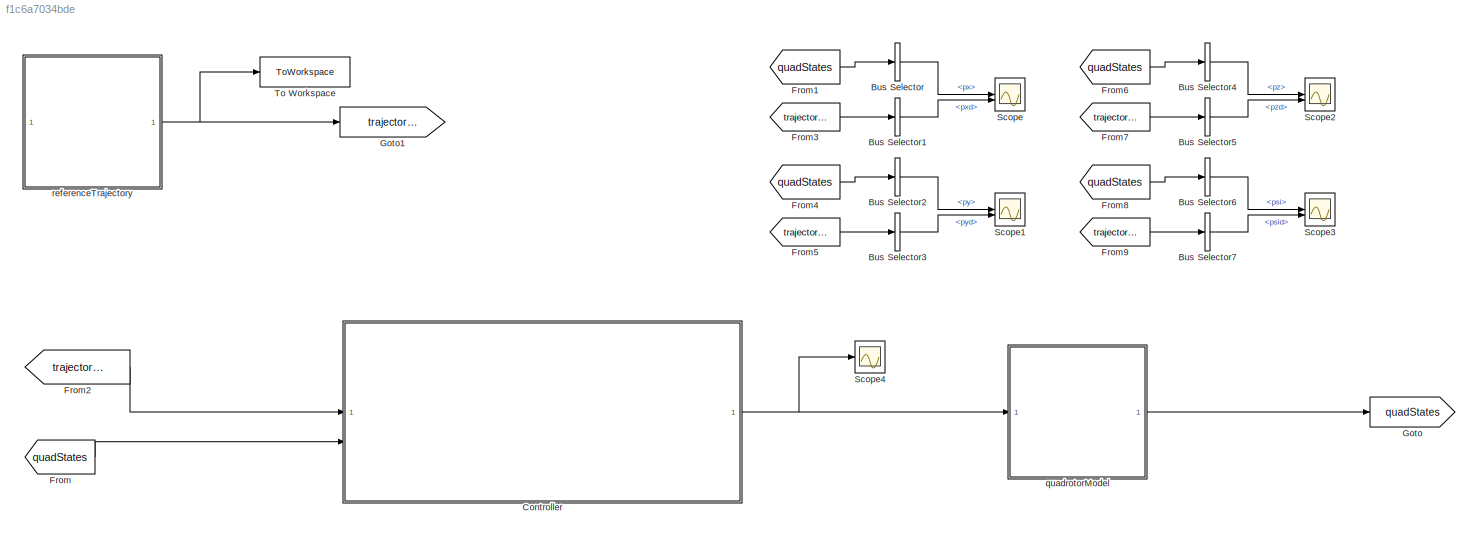
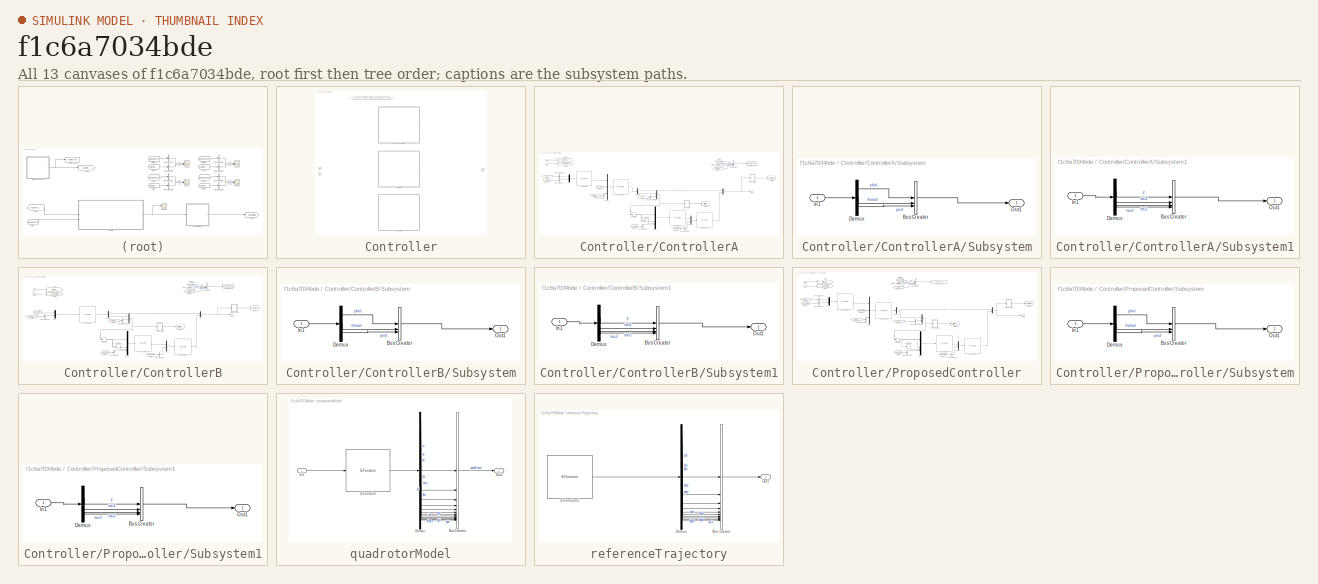
[diagram: thumbnail index - all 13 canvases of the model, root first then tree order]
MODEL slx_f1c6a7034bde
KIND model
CONFIG AbsTol = auto
CONFIG EnableMultiTasking = off
CONFIG FixedStep = 0.005
CONFIG MaxStep = auto
CONFIG MinStep = auto
CONFIG PreLoadFcn = run('globalParams.m');\nglobal Mode;\nProposedController = Simulink.Variant('Mode == 1');\nControllerA = Simulink.Variant('Mode == 2');\nControllerB = Simulink.Variant('Mode == 3');
CONFIG RelTol = 1e-3
CONFIG SampleTimeConstraint = Unconstrained
CONFIG SolverName = FixedStepAuto
CONFIG StartTime = 0.0
CONFIG StopTime = 50.0
BLOCK [BusSelector] Bus Selector
  OutputSignals = px
BLOCK [BusSelector] Bus Selector1
  OutputSignals = pxd
BLOCK [BusSelector] Bus Selector2
  OutputSignals = py
BLOCK [BusSelector] Bus Selector3
  OutputSignals = pyd
BLOCK [BusSelector] Bus Selector4
  OutputSignals = pz
BLOCK [BusSelector] Bus Selector5
  OutputSignals = pzd
BLOCK [BusSelector] Bus Selector6
  OutputSignals = psi
BLOCK [BusSelector] Bus Selector7
  OutputSignals = psid
BLOCK [SubSystem] Controller
  ClipboardFcn = ProposedController = Simulink.Variant('Mode == 1');\nControllerA = Simulink.Variant('Mode == 2');\nControllerB = Simulink.Variant('Mode == 3');\nMode = 1;
  Variant = on
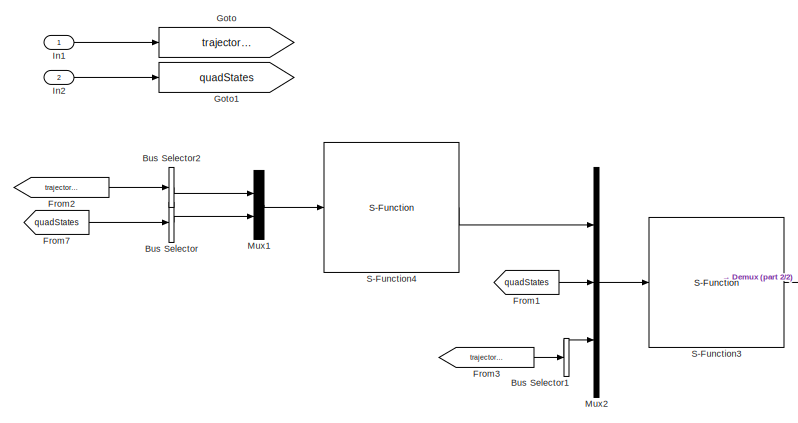
[diagram: Controller/ControllerA - part 1/2, top left region]
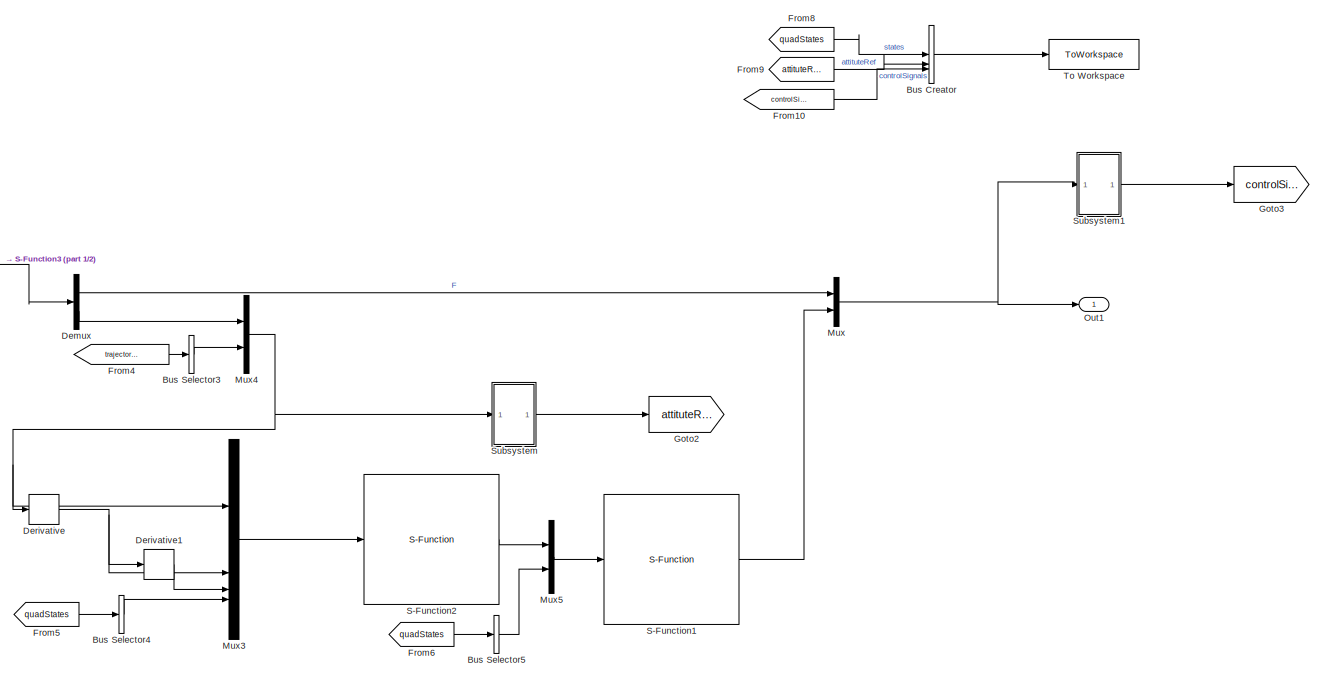
[diagram: Controller/ControllerA - part 2/2, right side, full height]
BLOCK [SubSystem] Controller/ControllerA
  VariantControl = ControllerA
BLOCK [BusCreator] Controller/ControllerA/Bus Creator
  DisplayOption = bar
  InheritFromInputs = on
  Inputs = 3
BLOCK [BusSelector] Controller/ControllerA/Bus Selector
  OutputAsBus = on
  OutputSignals = px,py,pz,dpx,dpy,dpz
BLOCK [BusSelector] Controller/ControllerA/Bus Selector1
  OutputAsBus = on
  OutputSignals = ddpxd,ddpyd,ddpzd,psid
BLOCK [BusSelector] Controller/ControllerA/Bus Selector2
  OutputAsBus = on
  OutputSignals = pxd,pyd,pzd,dpxd,dpyd,dpzd,ddpxd,ddpyd,ddpzd
BLOCK [BusSelector] Controller/ControllerA/Bus Selector3
  OutputAsBus = on
  OutputSignals = psid
BLOCK [BusSelector] Controller/ControllerA/Bus Selector4
  OutputAsBus = on
  OutputSignals = phi,theta,psi,dphi,dtheta,dpsi
BLOCK [BusSelector] Controller/ControllerA/Bus Selector5
  OutputAsBus = on
  OutputSignals = phi,theta,psi,dphi,dtheta,dpsi
BLOCK [Demux] Controller/ControllerA/Demux
  Outputs = [1,2]
BLOCK [Derivative] Controller/ControllerA/Derivative
BLOCK [Derivative] Controller/ControllerA/Derivative1
BLOCK [From] Controller/ControllerA/From1
  GotoTag = quadStates
BLOCK [From] Controller/ControllerA/From10
  GotoTag = controlSignals
BLOCK [From] Controller/ControllerA/From2
  GotoTag = trajectoryRef
BLOCK [From] Controller/ControllerA/From3
  GotoTag = trajectoryRef
BLOCK [From] Controller/ControllerA/From4
  GotoTag = trajectoryRef
BLOCK [From] Controller/ControllerA/From5
  GotoTag = quadStates
BLOCK [From] Controller/ControllerA/From6
  GotoTag = quadStates
BLOCK [From] Controller/ControllerA/From7
  GotoTag = quadStates
BLOCK [From] Controller/ControllerA/From8
  GotoTag = quadStates
BLOCK [From] Controller/ControllerA/From9
  GotoTag = attituteRef
BLOCK [Goto] Controller/ControllerA/Goto
  GotoTag = trajectoryRef
BLOCK [Goto] Controller/ControllerA/Goto1
  GotoTag = quadStates
BLOCK [Goto] Controller/ControllerA/Goto2
  GotoTag = attituteRef
BLOCK [Goto] Controller/ControllerA/Goto3
  GotoTag = controlSignals
BLOCK [Inport] Controller/ControllerA/In1
BLOCK [Inport] Controller/ControllerA/In2
  Port = 2
BLOCK [Mux] Controller/ControllerA/Mux
  DisplayOption = bar
  Inputs = 2
BLOCK [Mux] Controller/ControllerA/Mux1
  DisplayOption = bar
  Inputs = 2
BLOCK [Mux] Controller/ControllerA/Mux2
  DisplayOption = bar
  Inputs = 3
BLOCK [Mux] Controller/ControllerA/Mux3
  DisplayOption = bar
BLOCK [Mux] Controller/ControllerA/Mux4
  DisplayOption = bar
  Inputs = 2
BLOCK [Mux] Controller/ControllerA/Mux5
  DisplayOption = bar
  Inputs = 2
BLOCK [Outport] Controller/ControllerA/Out1
BLOCK [S-Function] Controller/ControllerA/S-Function1
  EnableBusSupport = off
  FunctionName = attitudeInnerControllerA
  SFcnIsStateOwnerBlock = off
  SFunctionDeploymentMode = off
BLOCK [S-Function] Controller/ControllerA/S-Function2
  EnableBusSupport = off
  FunctionName = attitudeOuterControllerA
  SFcnIsStateOwnerBlock = off
  SFunctionDeploymentMode = off
BLOCK [S-Function] Controller/ControllerA/S-Function3
  EnableBusSupport = off
  FunctionName = positionInnerControllerA
  SFcnIsStateOwnerBlock = off
  SFunctionDeploymentMode = off
BLOCK [S-Function] Controller/ControllerA/S-Function4
  EnableBusSupport = off
  FunctionName = positionOuterControllerA
  SFcnIsStateOwnerBlock = off
  SFunctionDeploymentMode = off
BLOCK [SubSystem] Controller/ControllerA/Subsystem
BLOCK [BusCreator] Controller/ControllerA/Subsystem/Bus Creator
  DisplayOption = bar
  InheritFromInputs = on
  Inputs = 3
BLOCK [Demux] Controller/ControllerA/Subsystem/Demux
  Outputs = 3
BLOCK [Inport] Controller/ControllerA/Subsystem/In1
BLOCK [Outport] Controller/ControllerA/Subsystem/Out1
BLOCK [SubSystem] Controller/ControllerA/Subsystem1
BLOCK [BusCreator] Controller/ControllerA/Subsystem1/Bus Creator
  DisplayOption = bar
  InheritFromInputs = on
  Inputs = 4
BLOCK [Demux] Controller/ControllerA/Subsystem1/Demux
BLOCK [Inport] Controller/ControllerA/Subsystem1/In1
BLOCK [Outport] Controller/ControllerA/Subsystem1/Out1
BLOCK [ToWorkspace] Controller/ControllerA/To Workspace
  FixptAsFi = on
  MaxDataPoints = inf
  SampleTime = -1
  SaveFormat = Timeseries
  VariableName = outStatesControllerA
BLOCK [SubSystem] Controller/ControllerB
  VariantControl = ControllerB
BLOCK [BusCreator] Controller/ControllerB/Bus Creator
  DisplayOption = bar
  InheritFromInputs = on
  Inputs = 3
BLOCK [BusSelector] Controller/ControllerB/Bus Selector2
  OutputAsBus = on
  OutputSignals = pxd,pyd,pzd,dpxd,dpyd,dpzd,ddpxd,ddpyd,ddpzd,psid
BLOCK [BusSelector] Controller/ControllerB/Bus Selector3
  OutputAsBus = on
  OutputSignals = psid
BLOCK [BusSelector] Controller/ControllerB/Bus Selector4
  OutputAsBus = on
  OutputSignals = phi,theta,psi,dphi,dtheta,dpsi
BLOCK [BusSelector] Controller/ControllerB/Bus Selector5
  OutputAsBus = on
  OutputSignals = phi,theta,psi,dphi,dtheta,dpsi
BLOCK [Demux] Controller/ControllerB/Demux
  Outputs = [1,2]
BLOCK [Derivative] Controller/ControllerB/Derivative
BLOCK [Derivative] Controller/ControllerB/Derivative1
BLOCK [From] Controller/ControllerB/From10
  GotoTag = controlSignals
BLOCK [From] Controller/ControllerB/From2
  GotoTag = trajectoryRef
BLOCK [From] Controller/ControllerB/From4
  GotoTag = trajectoryRef
BLOCK [From] Controller/ControllerB/From5
  GotoTag = quadStates
BLOCK [From] Controller/ControllerB/From6
  GotoTag = quadStates
BLOCK [From] Controller/ControllerB/From7
  GotoTag = quadStates
BLOCK [From] Controller/ControllerB/From8
  GotoTag = quadStates
BLOCK [From] Controller/ControllerB/From9
  GotoTag = attituteRef
BLOCK [Goto] Controller/ControllerB/Goto
  GotoTag = trajectoryRef
BLOCK [Goto] Controller/ControllerB/Goto1
  GotoTag = quadStates
BLOCK [Goto] Controller/ControllerB/Goto2
  GotoTag = attituteRef
BLOCK [Goto] Controller/ControllerB/Goto3
  GotoTag = controlSignals
BLOCK [Inport] Controller/ControllerB/In1
BLOCK [Inport] Controller/ControllerB/In2
  Port = 2
BLOCK [Mux] Controller/ControllerB/Mux
  DisplayOption = bar
  Inputs = 2
BLOCK [Mux] Controller/ControllerB/Mux1
  DisplayOption = bar
  Inputs = 2
BLOCK [Mux] Controller/ControllerB/Mux3
  DisplayOption = bar
BLOCK [Mux] Controller/ControllerB/Mux4
  DisplayOption = bar
  Inputs = 2
BLOCK [Mux] Controller/ControllerB/Mux5
  DisplayOption = bar
  Inputs = 2
BLOCK [Outport] Controller/ControllerB/Out1
BLOCK [S-Function] Controller/ControllerB/S-Function1
  EnableBusSupport = off
  FunctionName = attitudeInnerControllerB
  SFcnIsStateOwnerBlock = off
  SFunctionDeploymentMode = off
BLOCK [S-Function] Controller/ControllerB/S-Function2
  EnableBusSupport = off
  FunctionName = attitudeOuterControllerB
  SFcnIsStateOwnerBlock = off
  SFunctionDeploymentMode = off
BLOCK [S-Function] Controller/ControllerB/S-Function3
  EnableBusSupport = off
  FunctionName = positionInnerControllerB
  SFcnIsStateOwnerBlock = off
  SFunctionDeploymentMode = off
BLOCK [SubSystem] Controller/ControllerB/Subsystem
BLOCK [BusCreator] Controller/ControllerB/Subsystem/Bus Creator
  DisplayOption = bar
  InheritFromInputs = on
  Inputs = 3
BLOCK [Demux] Controller/ControllerB/Subsystem/Demux
  Outputs = 3
BLOCK [Inport] Controller/ControllerB/Subsystem/In1
BLOCK [Outport] Controller/ControllerB/Subsystem/Out1
BLOCK [SubSystem] Controller/ControllerB/Subsystem1
BLOCK [BusCreator] Controller/ControllerB/Subsystem1/Bus Creator
  DisplayOption = bar
  InheritFromInputs = on
  Inputs = 4
BLOCK [Demux] Controller/ControllerB/Subsystem1/Demux
BLOCK [Inport] Controller/ControllerB/Subsystem1/In1
BLOCK [Outport] Controller/ControllerB/Subsystem1/Out1
BLOCK [ToWorkspace] Controller/ControllerB/To Workspace
  FixptAsFi = on
  MaxDataPoints = inf
  SampleTime = -1
  SaveFormat = Timeseries
  VariableName = outStatesControllerB
BLOCK [Inport] Controller/In1
BLOCK [Inport] Controller/In2
  Port = 2
BLOCK [Outport] Controller/Out1
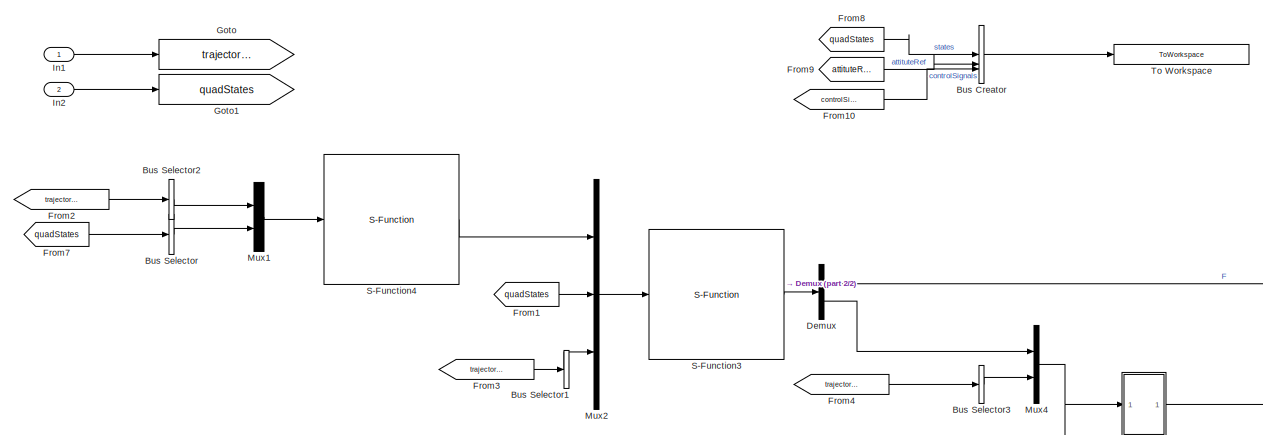
[diagram: Controller/ProposedController - part 1/2, top left region]
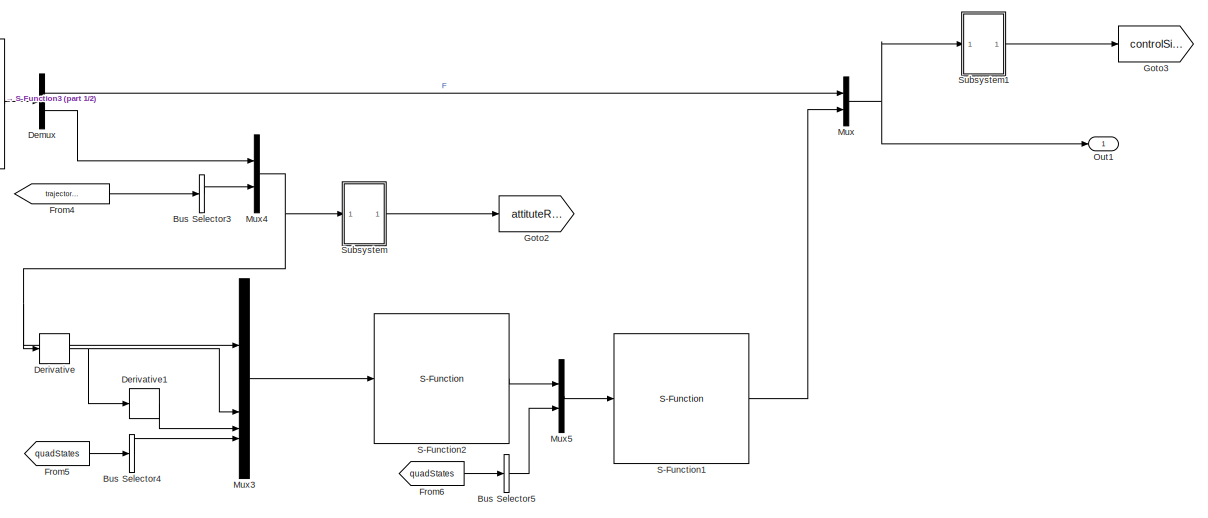
[diagram: Controller/ProposedController - part 2/2, middle right region]
BLOCK [SubSystem] Controller/ProposedController
  VariantControl = ProposedController
BLOCK [BusCreator] Controller/ProposedController/Bus Creator
  DisplayOption = bar
  InheritFromInputs = on
  Inputs = 3
BLOCK [BusSelector] Controller/ProposedController/Bus Selector
  OutputAsBus = on
  OutputSignals = px,py,pz,dpx,dpy,dpz
BLOCK [BusSelector] Controller/ProposedController/Bus Selector1
  OutputAsBus = on
  OutputSignals = ddpxd,ddpyd,ddpzd,psid
BLOCK [BusSelector] Controller/ProposedController/Bus Selector2
  OutputAsBus = on
  OutputSignals = pxd,pyd,pzd,dpxd,dpyd,dpzd,ddpxd,ddpyd,ddpzd
BLOCK [BusSelector] Controller/ProposedController/Bus Selector3
  OutputAsBus = on
  OutputSignals = psid
BLOCK [BusSelector] Controller/ProposedController/Bus Selector4
  OutputAsBus = on
  OutputSignals = phi,theta,psi,dphi,dtheta,dpsi
BLOCK [BusSelector] Controller/ProposedController/Bus Selector5
  OutputAsBus = on
  OutputSignals = phi,theta,psi,dphi,dtheta,dpsi
BLOCK [Demux] Controller/ProposedController/Demux
  Outputs = [1,2]
BLOCK [Derivative] Controller/ProposedController/Derivative
BLOCK [Derivative] Controller/ProposedController/Derivative1
BLOCK [From] Controller/ProposedController/From1
  GotoTag = quadStates
BLOCK [From] Controller/ProposedController/From10
  GotoTag = controlSignals
BLOCK [From] Controller/ProposedController/From2
  GotoTag = trajectoryRef
BLOCK [From] Controller/ProposedController/From3
  GotoTag = trajectoryRef
BLOCK [From] Controller/ProposedController/From4
  GotoTag = trajectoryRef
BLOCK [From] Controller/ProposedController/From5
  GotoTag = quadStates
BLOCK [From] Controller/ProposedController/From6
  GotoTag = quadStates
BLOCK [From] Controller/ProposedController/From7
  GotoTag = quadStates
BLOCK [From] Controller/ProposedController/From8
  GotoTag = quadStates
BLOCK [From] Controller/ProposedController/From9
  GotoTag = attituteRef
BLOCK [Goto] Controller/ProposedController/Goto
  GotoTag = trajectoryRef
BLOCK [Goto] Controller/ProposedController/Goto1
  GotoTag = quadStates
BLOCK [Goto] Controller/ProposedController/Goto2
  GotoTag = attituteRef
BLOCK [Goto] Controller/ProposedController/Goto3
  GotoTag = controlSignals
BLOCK [Inport] Controller/ProposedController/In1
BLOCK [Inport] Controller/ProposedController/In2
  Port = 2
BLOCK [Mux] Controller/ProposedController/Mux
  DisplayOption = bar
  Inputs = 2
BLOCK [Mux] Controller/ProposedController/Mux1
  DisplayOption = bar
  Inputs = 2
BLOCK [Mux] Controller/ProposedController/Mux2
  DisplayOption = bar
  Inputs = 3
BLOCK [Mux] Controller/ProposedController/Mux3
  DisplayOption = bar
BLOCK [Mux] Controller/ProposedController/Mux4
  DisplayOption = bar
  Inputs = 2
BLOCK [Mux] Controller/ProposedController/Mux5
  DisplayOption = bar
  Inputs = 2
BLOCK [Outport] Controller/ProposedController/Out1
BLOCK [S-Function] Controller/ProposedController/S-Function1
  EnableBusSupport = off
  FunctionName = attitudeInnerController
  SFcnIsStateOwnerBlock = off
  SFunctionDeploymentMode = off
BLOCK [S-Function] Controller/ProposedController/S-Function2
  EnableBusSupport = off
  FunctionName = attitudeOuterController
  SFcnIsStateOwnerBlock = off
  SFunctionDeploymentMode = off
BLOCK [S-Function] Controller/ProposedController/S-Function3
  EnableBusSupport = off
  FunctionName = positionInnerController
  SFcnIsStateOwnerBlock = off
  SFunctionDeploymentMode = off
BLOCK [S-Function] Controller/ProposedController/S-Function4
  EnableBusSupport = off
  FunctionName = positionOuterController
  SFcnIsStateOwnerBlock = off
  SFunctionDeploymentMode = off
BLOCK [SubSystem] Controller/ProposedController/Subsystem
BLOCK [BusCreator] Controller/ProposedController/Subsystem/Bus Creator
  DisplayOption = bar
  InheritFromInputs = on
  Inputs = 3
BLOCK [Demux] Controller/ProposedController/Subsystem/Demux
  Outputs = 3
BLOCK [Inport] Controller/ProposedController/Subsystem/In1
BLOCK [Outport] Controller/ProposedController/Subsystem/Out1
BLOCK [SubSystem] Controller/ProposedController/Subsystem1
BLOCK [BusCreator] Controller/ProposedController/Subsystem1/Bus Creator
  DisplayOption = bar
  InheritFromInputs = on
  Inputs = 4
BLOCK [Demux] Controller/ProposedController/Subsystem1/Demux
BLOCK [Inport] Controller/ProposedController/Subsystem1/In1
BLOCK [Outport] Controller/ProposedController/Subsystem1/Out1
BLOCK [ToWorkspace] Controller/ProposedController/To Workspace
  FixptAsFi = on
  MaxDataPoints = inf
  SampleTime = -1
  SaveFormat = Timeseries
  VariableName = outStatesProposedController
BLOCK [From] From
  GotoTag = quadStates
BLOCK [From] From1
  GotoTag = quadStates
BLOCK [From] From2
  GotoTag = trajectoryRef
BLOCK [From] From3
  GotoTag = trajectoryRef
BLOCK [From] From4
  GotoTag = quadStates
BLOCK [From] From5
  GotoTag = trajectoryRef
BLOCK [From] From6
  GotoTag = quadStates
BLOCK [From] From7
  GotoTag = trajectoryRef
BLOCK [From] From8
  GotoTag = quadStates
BLOCK [From] From9
  GotoTag = trajectoryRef
BLOCK [Goto] Goto
  GotoTag = quadStates
BLOCK [Goto] Goto1
  GotoTag = trajectoryRef
BLOCK [Scope] Scope
  Floating = off
  NumInputPorts = 2
  ScopeSpecificationString = Simulink.scopes.TimeScopeBlockCfg('CurrentConfiguration', extmgr.ConfigurationSet(extmgr.Configuration('Core','General UI',true,'FigureColor',[1 1 1]),extmgr.Configuration('Core','Source UI',true),extmgr.Configuration('Sources','WiredSimulink',true),extmgr.Configuration('Visuals','Time Domain',true,'SerializedDisplays',{struct('MinYLimReal','-0.67941','MaxYLimReal','0.67279','YLabelReal','','MinYL...<+1577ch>
BLOCK [Scope] Scope1
  Floating = off
  NumInputPorts = 2
  ScopeSpecificationString = Simulink.scopes.TimeScopeBlockCfg('CurrentConfiguration', extmgr.ConfigurationSet(extmgr.Configuration('Core','General UI',true,'FigureColor',[1 1 1]),extmgr.Configuration('Core','Source UI',true),extmgr.Configuration('Sources','WiredSimulink',true,'DataLoggingVariableName','ScopeData1'),extmgr.Configuration('Visuals','Time Domain',true,'SerializedDisplays',{struct('MinYLimReal','-1.28165','MaxYLi...<+1615ch>
BLOCK [Scope] Scope2
  Floating = off
  NumInputPorts = 2
  ScopeSpecificationString = Simulink.scopes.TimeScopeBlockCfg('CurrentConfiguration', extmgr.ConfigurationSet(extmgr.Configuration('Core','General UI',true,'FigureColor',[1 1 1]),extmgr.Configuration('Core','Source UI',true),extmgr.Configuration('Sources','WiredSimulink',true,'DataLoggingVariableName','ScopeData2'),extmgr.Configuration('Visuals','Time Domain',true,'SerializedDisplays',{struct('MinYLimReal','0.09779','MaxYLim...<+1601ch>
BLOCK [Scope] Scope3
  Floating = off
  NumInputPorts = 2
  ScopeSpecificationString = Simulink.scopes.TimeScopeBlockCfg('CurrentConfiguration', extmgr.ConfigurationSet(extmgr.Configuration('Core','General UI',true,'FigureColor',[1 1 1]),extmgr.Configuration('Core','Source UI',true),extmgr.Configuration('Sources','WiredSimulink',true,'DataLoggingVariableName','ScopeData3'),extmgr.Configuration('Visuals','Time Domain',true,'SerializedDisplays',{struct('MinYLimReal','-0.00966','MaxYLi...<+1609ch>
BLOCK [Scope] Scope4
  Floating = off
  NumInputPorts = 1
  ScopeSpecificationString = Simulink.scopes.TimeScopeBlockCfg('CurrentConfiguration', extmgr.ConfigurationSet(extmgr.Configuration('Core','General UI',true),extmgr.Configuration('Core','Source UI',true),extmgr.Configuration('Sources','WiredSimulink',true,'DataLoggingVariableName','ScopeData1'),extmgr.Configuration('Visuals','Time Domain',true,'SerializedDisplays',{struct('MinYLimReal','-3.18373','MaxYLimReal','21.99044','YLa...<+1439ch>
BLOCK [ToWorkspace] To Workspace
  FixptAsFi = on
  MaxDataPoints = inf
  SampleTime = -1
  SaveFormat = Timeseries
  VariableName = RefereneTraj
BLOCK [SubSystem] quadrotorModel
BLOCK [BusCreator] quadrotorModel/Bus Creator
  DisplayOption = bar
  InheritFromInputs = on
  Inputs = 12
BLOCK [Demux] quadrotorModel/Demux
  Outputs = 12
BLOCK [Inport] quadrotorModel/In1
BLOCK [Outport] quadrotorModel/Out1
BLOCK [S-Function] quadrotorModel/S-Function
  EnableBusSupport = off
  FunctionName = quadrotorModel
  SFcnIsStateOwnerBlock = off
  SFunctionDeploymentMode = off
BLOCK [SubSystem] referenceTrajectory
BLOCK [BusCreator] referenceTrajectory/Bus Creator
  DisplayOption = bar
  InheritFromInputs = on
  Inputs = 10
BLOCK [Demux] referenceTrajectory/Demux
  Outputs = 10
BLOCK [Outport] referenceTrajectory/Out1
BLOCK [S-Function] referenceTrajectory/S-Function5
  EnableBusSupport = off
  FunctionName = trajectoryReference
  SFcnIsStateOwnerBlock = off
  SFunctionDeploymentMode = off
ANNOTATION Controller: 1) Add Subsystem or Model blocks as valid variant choices. 2) You cannot connect blocks at this level. At simulation, connectivity is automatically determined, based on the active variant and port name matching.
LINE Bus Selector1:1 -> Scope:2
LINE Bus Selector2:1 -> Scope1:1
LINE Bus Selector3:1 -> Scope1:2
LINE Bus Selector4:1 -> Scope2:1
LINE Bus Selector5:1 -> Scope2:2
LINE Bus Selector6:1 -> Scope3:1
LINE Bus Selector7:1 -> Scope3:2
LINE Bus Selector:1 -> Scope:1
LINE Controller/ControllerA/Bus Creator:1 -> Controller/ControllerA/To Workspace:1
LINE Controller/ControllerA/Bus Selector1:1 -> Controller/ControllerA/Mux2:3
LINE Controller/ControllerA/Bus Selector2:1 -> Controller/ControllerA/Mux1:1
LINE Controller/ControllerA/Bus Selector3:1 -> Controller/ControllerA/Mux4:2
LINE Controller/ControllerA/Bus Selector4:1 -> Controller/ControllerA/Mux3:4
LINE Controller/ControllerA/Bus Selector5:1 -> Controller/ControllerA/Mux5:2
LINE Controller/ControllerA/Bus Selector:1 -> Controller/ControllerA/Mux1:2
LINE Controller/ControllerA/Demux:1 -> Controller/ControllerA/Mux:1
LINE Controller/ControllerA/Demux:2 -> Controller/ControllerA/Mux4:1
LINE Controller/ControllerA/Derivative1:1 -> Controller/ControllerA/Mux3:3
NET Controller/ControllerA/Derivative:1 -> Controller/ControllerA/Derivative1:1, Controller/ControllerA/Mux3:2
LINE Controller/ControllerA/From10:1 -> Controller/ControllerA/Bus Creator:3
LINE Controller/ControllerA/From1:1 -> Controller/ControllerA/Mux2:2
LINE Controller/ControllerA/From2:1 -> Controller/ControllerA/Bus Selector2:1
LINE Controller/ControllerA/From3:1 -> Controller/ControllerA/Bus Selector1:1
LINE Controller/ControllerA/From4:1 -> Controller/ControllerA/Bus Selector3:1
LINE Controller/ControllerA/From5:1 -> Controller/ControllerA/Bus Selector4:1
LINE Controller/ControllerA/From6:1 -> Controller/ControllerA/Bus Selector5:1
LINE Controller/ControllerA/From7:1 -> Controller/ControllerA/Bus Selector:1
LINE Controller/ControllerA/From8:1 -> Controller/ControllerA/Bus Creator:1
LINE Controller/ControllerA/From9:1 -> Controller/ControllerA/Bus Creator:2
LINE Controller/ControllerA/In1:1 -> Controller/ControllerA/Goto:1
LINE Controller/ControllerA/In2:1 -> Controller/ControllerA/Goto1:1
LINE Controller/ControllerA/Mux1:1 -> Controller/ControllerA/S-Function4:1
LINE Controller/ControllerA/Mux2:1 -> Controller/ControllerA/S-Function3:1
LINE Controller/ControllerA/Mux3:1 -> Controller/ControllerA/S-Function2:1
NET Controller/ControllerA/Mux4:1 -> Controller/ControllerA/Derivative:1, Controller/ControllerA/Mux3:1, Controller/ControllerA/Subsystem:1
LINE Controller/ControllerA/Mux5:1 -> Controller/ControllerA/S-Function1:1
NET Controller/ControllerA/Mux:1 -> Controller/ControllerA/Out1:1, Controller/ControllerA/Subsystem1:1
LINE Controller/ControllerA/S-Function1:1 -> Controller/ControllerA/Mux:2
LINE Controller/ControllerA/S-Function2:1 -> Controller/ControllerA/Mux5:1
LINE Controller/ControllerA/S-Function3:1 -> Controller/ControllerA/Demux:1
LINE Controller/ControllerA/S-Function4:1 -> Controller/ControllerA/Mux2:1
LINE Controller/ControllerA/Subsystem/Bus Creator:1 -> Controller/ControllerA/Subsystem/Out1:1
LINE Controller/ControllerA/Subsystem/Demux:1 -> Controller/ControllerA/Subsystem/Bus Creator:1
LINE Controller/ControllerA/Subsystem/Demux:2 -> Controller/ControllerA/Subsystem/Bus Creator:2
LINE Controller/ControllerA/Subsystem/Demux:3 -> Controller/ControllerA/Subsystem/Bus Creator:3
LINE Controller/ControllerA/Subsystem/In1:1 -> Controller/ControllerA/Subsystem/Demux:1
LINE Controller/ControllerA/Subsystem1/Bus Creator:1 -> Controller/ControllerA/Subsystem1/Out1:1
LINE Controller/ControllerA/Subsystem1/Demux:1 -> Controller/ControllerA/Subsystem1/Bus Creator:1
LINE Controller/ControllerA/Subsystem1/Demux:2 -> Controller/ControllerA/Subsystem1/Bus Creator:2
LINE Controller/ControllerA/Subsystem1/Demux:3 -> Controller/ControllerA/Subsystem1/Bus Creator:3
LINE Controller/ControllerA/Subsystem1/Demux:4 -> Controller/ControllerA/Subsystem1/Bus Creator:4
LINE Controller/ControllerA/Subsystem1/In1:1 -> Controller/ControllerA/Subsystem1/Demux:1
LINE Controller/ControllerA/Subsystem1:1 -> Controller/ControllerA/Goto3:1
LINE Controller/ControllerA/Subsystem:1 -> Controller/ControllerA/Goto2:1
LINE Controller/ControllerB/Bus Creator:1 -> Controller/ControllerB/To Workspace:1
LINE Controller/ControllerB/Bus Selector2:1 -> Controller/ControllerB/Mux1:2
LINE Controller/ControllerB/Bus Selector3:1 -> Controller/ControllerB/Mux4:2
LINE Controller/ControllerB/Bus Selector4:1 -> Controller/ControllerB/Mux3:4
LINE Controller/ControllerB/Bus Selector5:1 -> Controller/ControllerB/Mux5:2
LINE Controller/ControllerB/Demux:1 -> Controller/ControllerB/Mux:1
LINE Controller/ControllerB/Demux:2 -> Controller/ControllerB/Mux4:1
LINE Controller/ControllerB/Derivative1:1 -> Controller/ControllerB/Mux3:3
NET Controller/ControllerB/Derivative:1 -> Controller/ControllerB/Derivative1:1, Controller/ControllerB/Mux3:2
LINE Controller/ControllerB/From10:1 -> Controller/ControllerB/Bus Creator:3
LINE Controller/ControllerB/From2:1 -> Controller/ControllerB/Bus Selector2:1
LINE Controller/ControllerB/From4:1 -> Controller/ControllerB/Bus Selector3:1
LINE Controller/ControllerB/From5:1 -> Controller/ControllerB/Bus Selector4:1
LINE Controller/ControllerB/From6:1 -> Controller/ControllerB/Bus Selector5:1
LINE Controller/ControllerB/From7:1 -> Controller/ControllerB/Mux1:1
LINE Controller/ControllerB/From8:1 -> Controller/ControllerB/Bus Creator:1
LINE Controller/ControllerB/From9:1 -> Controller/ControllerB/Bus Creator:2
LINE Controller/ControllerB/In1:1 -> Controller/ControllerB/Goto:1
LINE Controller/ControllerB/In2:1 -> Controller/ControllerB/Goto1:1
LINE Controller/ControllerB/Mux1:1 -> Controller/ControllerB/S-Function3:1
LINE Controller/ControllerB/Mux3:1 -> Controller/ControllerB/S-Function2:1
NET Controller/ControllerB/Mux4:1 -> Controller/ControllerB/Derivative:1, Controller/ControllerB/Mux3:1, Controller/ControllerB/Subsystem:1
LINE Controller/ControllerB/Mux5:1 -> Controller/ControllerB/S-Function1:1
NET Controller/ControllerB/Mux:1 -> Controller/ControllerB/Out1:1, Controller/ControllerB/Subsystem1:1
LINE Controller/ControllerB/S-Function1:1 -> Controller/ControllerB/Mux:2
LINE Controller/ControllerB/S-Function2:1 -> Controller/ControllerB/Mux5:1
LINE Controller/ControllerB/S-Function3:1 -> Controller/ControllerB/Demux:1
LINE Controller/ControllerB/Subsystem/Bus Creator:1 -> Controller/ControllerB/Subsystem/Out1:1
LINE Controller/ControllerB/Subsystem/Demux:1 -> Controller/ControllerB/Subsystem/Bus Creator:1
LINE Controller/ControllerB/Subsystem/Demux:2 -> Controller/ControllerB/Subsystem/Bus Creator:2
LINE Controller/ControllerB/Subsystem/Demux:3 -> Controller/ControllerB/Subsystem/Bus Creator:3
LINE Controller/ControllerB/Subsystem/In1:1 -> Controller/ControllerB/Subsystem/Demux:1
LINE Controller/ControllerB/Subsystem1/Bus Creator:1 -> Controller/ControllerB/Subsystem1/Out1:1
LINE Controller/ControllerB/Subsystem1/Demux:1 -> Controller/ControllerB/Subsystem1/Bus Creator:1
LINE Controller/ControllerB/Subsystem1/Demux:2 -> Controller/ControllerB/Subsystem1/Bus Creator:2
LINE Controller/ControllerB/Subsystem1/Demux:3 -> Controller/ControllerB/Subsystem1/Bus Creator:3
LINE Controller/ControllerB/Subsystem1/Demux:4 -> Controller/ControllerB/Subsystem1/Bus Creator:4
LINE Controller/ControllerB/Subsystem1/In1:1 -> Controller/ControllerB/Subsystem1/Demux:1
LINE Controller/ControllerB/Subsystem1:1 -> Controller/ControllerB/Goto3:1
LINE Controller/ControllerB/Subsystem:1 -> Controller/ControllerB/Goto2:1
LINE Controller/ProposedController/Bus Creator:1 -> Controller/ProposedController/To Workspace:1
LINE Controller/ProposedController/Bus Selector1:1 -> Controller/ProposedController/Mux2:3
LINE Controller/ProposedController/Bus Selector2:1 -> Controller/ProposedController/Mux1:1
LINE Controller/ProposedController/Bus Selector3:1 -> Controller/ProposedController/Mux4:2
LINE Controller/ProposedController/Bus Selector4:1 -> Controller/ProposedController/Mux3:4
LINE Controller/ProposedController/Bus Selector5:1 -> Controller/ProposedController/Mux5:2
LINE Controller/ProposedController/Bus Selector:1 -> Controller/ProposedController/Mux1:2
LINE Controller/ProposedController/Demux:1 -> Controller/ProposedController/Mux:1
LINE Controller/ProposedController/Demux:2 -> Controller/ProposedController/Mux4:1
LINE Controller/ProposedController/Derivative1:1 -> Controller/ProposedController/Mux3:3
NET Controller/ProposedController/Derivative:1 -> Controller/ProposedController/Derivative1:1, Controller/ProposedController/Mux3:2
LINE Controller/ProposedController/From10:1 -> Controller/ProposedController/Bus Creator:3
LINE Controller/ProposedController/From1:1 -> Controller/ProposedController/Mux2:2
LINE Controller/ProposedController/From2:1 -> Controller/ProposedController/Bus Selector2:1
LINE Controller/ProposedController/From3:1 -> Controller/ProposedController/Bus Selector1:1
LINE Controller/ProposedController/From4:1 -> Controller/ProposedController/Bus Selector3:1
LINE Controller/ProposedController/From5:1 -> Controller/ProposedController/Bus Selector4:1
LINE Controller/ProposedController/From6:1 -> Controller/ProposedController/Bus Selector5:1
LINE Controller/ProposedController/From7:1 -> Controller/ProposedController/Bus Selector:1
LINE Controller/ProposedController/From8:1 -> Controller/ProposedController/Bus Creator:1
LINE Controller/ProposedController/From9:1 -> Controller/ProposedController/Bus Creator:2
LINE Controller/ProposedController/In1:1 -> Controller/ProposedController/Goto:1
LINE Controller/ProposedController/In2:1 -> Controller/ProposedController/Goto1:1
LINE Controller/ProposedController/Mux1:1 -> Controller/ProposedController/S-Function4:1
LINE Controller/ProposedController/Mux2:1 -> Controller/ProposedController/S-Function3:1
LINE Controller/ProposedController/Mux3:1 -> Controller/ProposedController/S-Function2:1
NET Controller/ProposedController/Mux4:1 -> Controller/ProposedController/Derivative:1, Controller/ProposedController/Mux3:1, Controller/ProposedController/Subsystem:1
LINE Controller/ProposedController/Mux5:1 -> Controller/ProposedController/S-Function1:1
NET Controller/ProposedController/Mux:1 -> Controller/ProposedController/Out1:1, Controller/ProposedController/Subsystem1:1
LINE Controller/ProposedController/S-Function1:1 -> Controller/ProposedController/Mux:2
LINE Controller/ProposedController/S-Function2:1 -> Controller/ProposedController/Mux5:1
LINE Controller/ProposedController/S-Function3:1 -> Controller/ProposedController/Demux:1
LINE Controller/ProposedController/S-Function4:1 -> Controller/ProposedController/Mux2:1
LINE Controller/ProposedController/Subsystem/Bus Creator:1 -> Controller/ProposedController/Subsystem/Out1:1
LINE Controller/ProposedController/Subsystem/Demux:1 -> Controller/ProposedController/Subsystem/Bus Creator:1
LINE Controller/ProposedController/Subsystem/Demux:2 -> Controller/ProposedController/Subsystem/Bus Creator:2
LINE Controller/ProposedController/Subsystem/Demux:3 -> Controller/ProposedController/Subsystem/Bus Creator:3
LINE Controller/ProposedController/Subsystem/In1:1 -> Controller/ProposedController/Subsystem/Demux:1
LINE Controller/ProposedController/Subsystem1/Bus Creator:1 -> Controller/ProposedController/Subsystem1/Out1:1
LINE Controller/ProposedController/Subsystem1/Demux:1 -> Controller/ProposedController/Subsystem1/Bus Creator:1
LINE Controller/ProposedController/Subsystem1/Demux:2 -> Controller/ProposedController/Subsystem1/Bus Creator:2
LINE Controller/ProposedController/Subsystem1/Demux:3 -> Controller/ProposedController/Subsystem1/Bus Creator:3
LINE Controller/ProposedController/Subsystem1/Demux:4 -> Controller/ProposedController/Subsystem1/Bus Creator:4
LINE Controller/ProposedController/Subsystem1/In1:1 -> Controller/ProposedController/Subsystem1/Demux:1
LINE Controller/ProposedController/Subsystem1:1 -> Controller/ProposedController/Goto3:1
LINE Controller/ProposedController/Subsystem:1 -> Controller/ProposedController/Goto2:1
NET Controller:1 -> Scope4:1, quadrotorModel:1
LINE From1:1 -> Bus Selector:1
LINE From2:1 -> Controller:1
LINE From3:1 -> Bus Selector1:1
LINE From4:1 -> Bus Selector2:1
LINE From5:1 -> Bus Selector3:1
LINE From6:1 -> Bus Selector4:1
LINE From7:1 -> Bus Selector5:1
LINE From8:1 -> Bus Selector6:1
LINE From9:1 -> Bus Selector7:1
LINE From:1 -> Controller:2
LINE quadrotorModel/Bus Creator:1 -> quadrotorModel/Out1:1
LINE quadrotorModel/Demux:1 -> quadrotorModel/Bus Creator:1
LINE quadrotorModel/Demux:10 -> quadrotorModel/Bus Creator:10
LINE quadrotorModel/Demux:11 -> quadrotorModel/Bus Creator:11
LINE quadrotorModel/Demux:12 -> quadrotorModel/Bus Creator:12
LINE quadrotorModel/Demux:2 -> quadrotorModel/Bus Creator:2
LINE quadrotorModel/Demux:3 -> quadrotorModel/Bus Creator:3
LINE quadrotorModel/Demux:4 -> quadrotorModel/Bus Creator:4
LINE quadrotorModel/Demux:5 -> quadrotorModel/Bus Creator:5
LINE quadrotorModel/Demux:6 -> quadrotorModel/Bus Creator:6
LINE quadrotorModel/Demux:7 -> quadrotorModel/Bus Creator:7
LINE quadrotorModel/Demux:8 -> quadrotorModel/Bus Creator:8
LINE quadrotorModel/Demux:9 -> quadrotorModel/Bus Creator:9
LINE quadrotorModel/In1:1 -> quadrotorModel/S-Function:1
LINE quadrotorModel/S-Function:1 -> quadrotorModel/Demux:1
LINE quadrotorModel:1 -> Goto:1
LINE referenceTrajectory/Bus Creator:1 -> referenceTrajectory/Out1:1
LINE referenceTrajectory/Demux:1 -> referenceTrajectory/Bus Creator:1
LINE referenceTrajectory/Demux:10 -> referenceTrajectory/Bus Creator:10
LINE referenceTrajectory/Demux:2 -> referenceTrajectory/Bus Creator:2
LINE referenceTrajectory/Demux:3 -> referenceTrajectory/Bus Creator:3
LINE referenceTrajectory/Demux:4 -> referenceTrajectory/Bus Creator:4
LINE referenceTrajectory/Demux:5 -> referenceTrajectory/Bus Creator:5
LINE referenceTrajectory/Demux:6 -> referenceTrajectory/Bus Creator:6
LINE referenceTrajectory/Demux:7 -> referenceTrajectory/Bus Creator:7
LINE referenceTrajectory/Demux:8 -> referenceTrajectory/Bus Creator:8
LINE referenceTrajectory/Demux:9 -> referenceTrajectory/Bus Creator:9
LINE referenceTrajectory/S-Function5:1 -> referenceTrajectory/Demux:1
NET referenceTrajectory:1 -> Goto1:1, To Workspace:1
note: NET lines group one-source signal fan-out (src -> all destinations, sorted); 1:1 wires keep LINE
